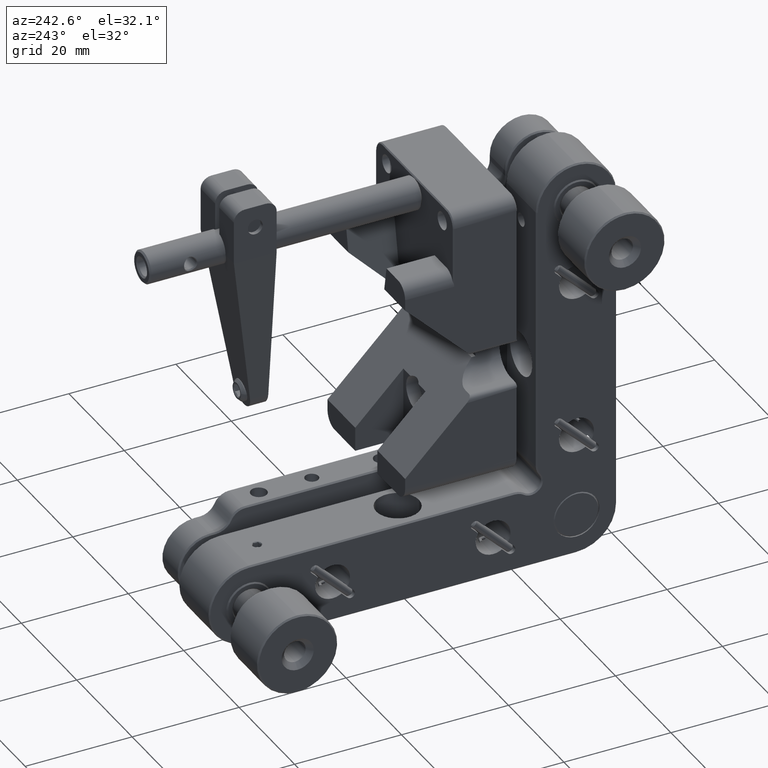
[diagram: clean part render]
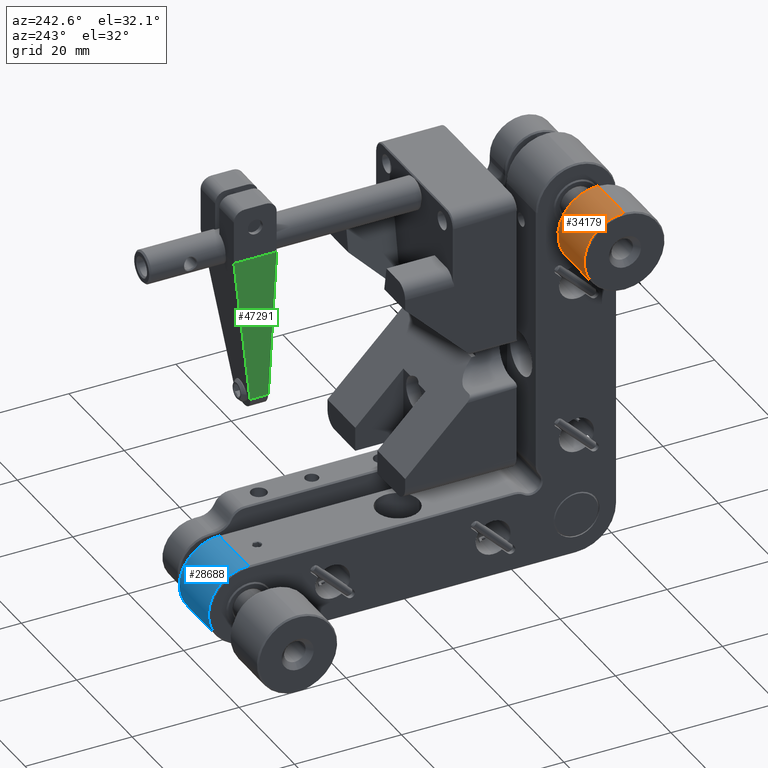
[diagram: same view with three faces highlighted in distinct colors, each labeled with its STEP entity id]
A machine part, auxiliary view with three faces highlighted in distinct colors.
Their STEP definitions:

[orange] entity #34179 — the highlighted cylindrical surface (partial cylindrical patch) has radius 7.5 mm, axis along (-1, -0, 0).
#85 = DIRECTION ( 'NONE',  ( -1.000000000000000000, -2.312964634635651252E-16, 2.312964634635651252E-16 ) ) ;
#894 = VERTEX_POINT ( 'NONE', #46513 ) ;
#1468 = CARTESIAN_POINT ( 'NONE',  ( -13.23561727047688841, -23.52740830937287342, 33.09568563278246245 ) ) ;
#2273 = VERTEX_POINT ( 'NONE', #1468 ) ;
#2332 = CIRCLE ( 'NONE', #10777, 7.500000000000298428 ) ;
#3906 = VERTEX_POINT ( 'NONE', #21430 ) ;
#4257 = LINE ( 'NONE', #44342, #41641 ) ;
#4341 = DIRECTION ( 'NONE',  ( 1.000000000000000000, 4.625929269271302504E-16, -4.625929269271302504E-16 ) ) ;
#6449 = EDGE_CURVE ( 'NONE', #9320, #9479, #25511, .T. ) ;
#8613 = ORIENTED_EDGE ( 'NONE', *, *, #35156, .T. ) ;
#9320 = VERTEX_POINT ( 'NONE', #43011 ) ;
#9479 = VERTEX_POINT ( 'NONE', #47520 ) ;
#9863 = CARTESIAN_POINT ( 'NONE',  ( -13.23561727047690262, -30.59999999999999787, 30.59999999999999787 ) ) ;
#9958 = ORIENTED_EDGE ( 'NONE', *, *, #42798, .T. ) ;
#10705 = DIRECTION ( 'NONE',  ( -1.000000000000000000, -2.312964634635651252E-16, 2.312964634635651252E-16 ) ) ;
#10777 = AXIS2_PLACEMENT_3D ( 'NONE', #44119, #29708, #22500 ) ;
#10944 = CARTESIAN_POINT ( 'NONE',  ( -13.23561727047690439, -30.60000000000000142, 38.10000000000029985 ) ) ;
#15141 = ORIENTED_EDGE ( 'NONE', *, *, #33472, .F. ) ;
#15839 = DIRECTION ( 'NONE',  ( 4.625929269271301518E-16, -1.000000000000000000, 0.000000000000000000 ) ) ;
#15970 = ORIENTED_EDGE ( 'NONE', *, *, #37871, .T. ) ;
#18703 = AXIS2_PLACEMENT_3D ( 'NONE', #19449, #4341, #15839 ) ;
#18783 = CARTESIAN_POINT ( 'NONE',  ( -12.28441727047690613, -30.60000000000000142, 23.09999999999970299 ) ) ;
#19449 = CARTESIAN_POINT ( 'NONE',  ( -22.73561727047700742, -30.60000000000000142, 30.60000000000000142 ) ) ;
#20914 = DIRECTION ( 'NONE',  ( 2.312964634635647801E-16, -1.000000000000000000, 9.251858538542591202E-16 ) ) ;
#21320 = EDGE_CURVE ( 'NONE', #3906, #894, #27475, .T. ) ;
#21430 = CARTESIAN_POINT ( 'NONE',  ( -22.73561727047697900, -23.52740830937291960, 33.09568563278241982 ) ) ;
#21739 = ORIENTED_EDGE ( 'NONE', *, *, #21320, .T. ) ;
#22450 = CYLINDRICAL_SURFACE ( 'NONE', #31708, 7.500000000000298428 ) ;
#22500 = DIRECTION ( 'NONE',  ( 2.312964634635650759E-16, 1.000000000000000000, 4.625929269271301518E-16 ) ) ;
#22613 = AXIS2_PLACEMENT_3D ( 'NONE', #9863, #29066, #20914 ) ;
#25511 = LINE ( 'NONE', #18783, #26777 ) ;
#25813 = DIRECTION ( 'NONE',  ( 2.312964634635650759E-16, 0.000000000000000000, 1.000000000000000000 ) ) ;
#26777 = VECTOR ( 'NONE', #85, 1000.000000000000000 ) ;
#27090 = ORIENTED_EDGE ( 'NONE', *, *, #6449, .T. ) ;
#27187 = CARTESIAN_POINT ( 'NONE',  ( -22.73561727047700742, -30.59999999999999787, 30.59999999999999787 ) ) ;
#27475 = CIRCLE ( 'NONE', #41273, 7.500000000000294875 ) ;
#28138 = DIRECTION ( 'NONE',  ( 4.625929269271303490E-16, 1.000000000000000000, 4.625929269271303490E-16 ) ) ;
#29066 = DIRECTION ( 'NONE',  ( -1.000000000000000000, -2.312964634635654703E-16, 2.312964634635654703E-16 ) ) ;
#29708 = DIRECTION ( 'NONE',  ( -1.000000000000000000, 2.312964634635646321E-16, -2.312964634635646321E-16 ) ) ;
#31708 = AXIS2_PLACEMENT_3D ( 'NONE', #36359, #10705, #25813 ) ;
#32804 = DIRECTION ( 'NONE',  ( -1.000000000000000000, -2.312964634635651252E-16, 2.312964634635651252E-16 ) ) ;
#33003 = FACE_OUTER_BOUND ( 'NONE', #36631, .T. ) ;
#33472 = EDGE_CURVE ( 'NONE', #44004, #894, #4257, .T. ) ;
#34179 = ADVANCED_FACE ( 'NONE', ( #33003 ), #22450, .T. ) ;
#35156 = EDGE_CURVE ( 'NONE', #9479, #3906, #47089, .T. ) ;
#35555 = DIRECTION ( 'NONE',  ( 1.000000000000000000, -4.625929269271295601E-16, 4.625929269271295601E-16 ) ) ;
#36359 = CARTESIAN_POINT ( 'NONE',  ( -12.28441727047690435, -30.60000000000000142, 30.60000000000000142 ) ) ;
#36403 = CIRCLE ( 'NONE', #22613, 7.500000000000308198 ) ;
#36631 = EDGE_LOOP ( 'NONE', ( #15970, #27090, #8613, #21739, #15141, #9958 ) ) ;
#37871 = EDGE_CURVE ( 'NONE', #2273, #9320, #36403, .T. ) ;
#41273 = AXIS2_PLACEMENT_3D ( 'NONE', #27187, #35555, #28138 ) ;
#41641 = VECTOR ( 'NONE', #32804, 1000.000000000000000 ) ;
#42798 = EDGE_CURVE ( 'NONE', #44004, #2273, #2332, .T. ) ;
#43011 = CARTESIAN_POINT ( 'NONE',  ( -13.23561727047690439, -30.60000000000000142, 23.09999999999968878 ) ) ;
#44004 = VERTEX_POINT ( 'NONE', #10944 ) ;
#44119 = CARTESIAN_POINT ( 'NONE',  ( -13.23561727047690262, -30.60000000000000142, 30.60000000000000142 ) ) ;
#44342 = CARTESIAN_POINT ( 'NONE',  ( -12.28441727047690257, -30.60000000000000142, 38.10000000000029985 ) ) ;
#46513 = CARTESIAN_POINT ( 'NONE',  ( -22.73561727047701098, -30.60000000000000142, 38.10000000000029274 ) ) ;
#47089 = CIRCLE ( 'NONE', #18703, 7.500000000000298428 ) ;
#47520 = CARTESIAN_POINT ( 'NONE',  ( -22.73561727047701098, -30.60000000000000142, 23.09999999999970299 ) ) ;

[blue] entity #28688 — the highlighted cylindrical surface (partial cylindrical patch) has radius 7.5 mm, axis along (1, 0, 0).
#510 = EDGE_CURVE ( 'NONE', #8833, #30640, #1691, .T. ) ;
#705 = DIRECTION ( 'NONE',  ( 1.000000000000000000, 1.156482317317871232E-16, 1.156482317317871232E-16 ) ) ;
#746 = VECTOR ( 'NONE', #6963, 1000.000000000000000 ) ;
#1691 = CIRCLE ( 'NONE', #28531, 7.500000000000013323 ) ;
#2465 = DIRECTION ( 'NONE',  ( 1.000000000000000000, -0.000000000000000000, -0.000000000000000000 ) ) ;
#4674 = EDGE_CURVE ( 'NONE', #41314, #30640, #14155, .T. ) ;
#4881 = DIRECTION ( 'NONE',  ( -1.000000000000000000, 0.000000000000000000, 0.000000000000000000 ) ) ;
#4905 = CARTESIAN_POINT ( 'NONE',  ( -5.249999999999999112, 30.60000000000000142, -30.60000000000000142 ) ) ;
#5015 = CYLINDRICAL_SURFACE ( 'NONE', #27129, 7.500000000000000000 ) ;
#5258 = EDGE_CURVE ( 'NONE', #7940, #41314, #11435, .T. ) ;
#5299 = DIRECTION ( 'NONE',  ( 1.156482317317870246E-16, 0.000000000000000000, 1.000000000000000000 ) ) ;
#6237 = EDGE_CURVE ( 'NONE', #47411, #7940, #25243, .T. ) ;
#6963 = DIRECTION ( 'NONE',  ( 1.000000000000000000, 0.000000000000000000, 0.000000000000000000 ) ) ;
#7940 = VERTEX_POINT ( 'NONE', #11425 ) ;
#8833 = VERTEX_POINT ( 'NONE', #44963 ) ;
#8899 = CARTESIAN_POINT ( 'NONE',  ( 5.249999999999999112, 30.60000000000000142, -30.60000000000000853 ) ) ;
#9377 = ORIENTED_EDGE ( 'NONE', *, *, #27691, .F. ) ;
#10379 = ORIENTED_EDGE ( 'NONE', *, *, #24501, .T. ) ;
#10692 = AXIS2_PLACEMENT_3D ( 'NONE', #4905, #26978, #12335 ) ;
#10784 = ORIENTED_EDGE ( 'NONE', *, *, #6237, .T. ) ;
#11425 = CARTESIAN_POINT ( 'NONE',  ( -5.250000000000000000, 38.10000000000000142, -30.59999999999999076 ) ) ;
#11435 = CIRCLE ( 'NONE', #13719, 7.500000000000000000 ) ;
#11973 = DIRECTION ( 'NONE',  ( 1.156482317317871478E-16, 0.000000000000000000, -1.000000000000000000 ) ) ;
#12335 = DIRECTION ( 'NONE',  ( 0.000000000000000000, -1.000000000000000000, 0.000000000000000000 ) ) ;
#13719 = AXIS2_PLACEMENT_3D ( 'NONE', #39764, #17936, #24902 ) ;
#14035 = ORIENTED_EDGE ( 'NONE', *, *, #510, .F. ) ;
#14155 = LINE ( 'NONE', #25670, #746 ) ;
#16086 = DIRECTION ( 'NONE',  ( 1.000000000000000000, -1.156482317317871232E-16, -1.156482317317872465E-16 ) ) ;
#16856 = DIRECTION ( 'NONE',  ( 0.000000000000000000, 0.000000000000000000, -1.000000000000000000 ) ) ;
#17936 = DIRECTION ( 'NONE',  ( 1.000000000000000000, -0.000000000000000000, 0.000000000000000000 ) ) ;
#18129 = VECTOR ( 'NONE', #4881, 1000.000000000000000 ) ;
#18552 = ORIENTED_EDGE ( 'NONE', *, *, #5258, .T. ) ;
#22518 = CIRCLE ( 'NONE', #28654, 7.500000000000007105 ) ;
#24501 = EDGE_CURVE ( 'NONE', #27243, #47411, #33674, .T. ) ;
#24902 = DIRECTION ( 'NONE',  ( 0.000000000000000000, -1.000000000000000000, 0.000000000000000000 ) ) ;
#25026 = CARTESIAN_POINT ( 'NONE',  ( 5.249999999999991118, 30.60000000000000142, -30.60000000000000142 ) ) ;
#25243 = CIRCLE ( 'NONE', #10692, 7.500000000000000000 ) ;
#25670 = CARTESIAN_POINT ( 'NONE',  ( 0.000000000000000000, 30.60000000000000142, -23.10000000000000142 ) ) ;
#26978 = DIRECTION ( 'NONE',  ( 1.000000000000000000, -0.000000000000000000, -0.000000000000000000 ) ) ;
#27129 = AXIS2_PLACEMENT_3D ( 'NONE', #44865, #705, #11973 ) ;
#27243 = VERTEX_POINT ( 'NONE', #40653 ) ;
#27691 = EDGE_CURVE ( 'NONE', #27243, #8833, #22518, .T. ) ;
#28531 = AXIS2_PLACEMENT_3D ( 'NONE', #25026, #2465, #16856 ) ;
#28654 = AXIS2_PLACEMENT_3D ( 'NONE', #8899, #16086, #5299 ) ;
#28688 = ADVANCED_FACE ( 'NONE', ( #29984 ), #5015, .T. ) ;
#29984 = FACE_OUTER_BOUND ( 'NONE', #41114, .T. ) ;
#30640 = VERTEX_POINT ( 'NONE', #33456 ) ;
#31783 = ORIENTED_EDGE ( 'NONE', *, *, #4674, .T. ) ;
#33456 = CARTESIAN_POINT ( 'NONE',  ( 5.249999999999990230, 30.60000000000003340, -23.10000000000000142 ) ) ;
#33674 = LINE ( 'NONE', #41348, #18129 ) ;
#39764 = CARTESIAN_POINT ( 'NONE',  ( -5.250000000000000888, 30.60000000000000142, -30.60000000000000142 ) ) ;
#40653 = CARTESIAN_POINT ( 'NONE',  ( 5.250000000000000000, 30.59999999999998721, -38.10000000000000853 ) ) ;
#41114 = EDGE_LOOP ( 'NONE', ( #14035, #9377, #10379, #10784, #18552, #31783 ) ) ;
#41314 = VERTEX_POINT ( 'NONE', #41783 ) ;
#41348 = CARTESIAN_POINT ( 'NONE',  ( 0.000000000000000000, 30.60000000000000142, -38.10000000000000142 ) ) ;
#41783 = CARTESIAN_POINT ( 'NONE',  ( -5.250000000000000000, 30.59999999999998721, -23.10000000000000142 ) ) ;
#42095 = CARTESIAN_POINT ( 'NONE',  ( -5.249999999999991118, 30.59999999999999787, -38.09999999999999432 ) ) ;
#44865 = CARTESIAN_POINT ( 'NONE',  ( -6.301200000000000578, 30.60000000000000142, -30.60000000000000142 ) ) ;
#44963 = CARTESIAN_POINT ( 'NONE',  ( 5.249999999999993783, 38.10000000000000853, -30.59999999999999432 ) ) ;
#47411 = VERTEX_POINT ( 'NONE', #42095 ) ;

[green] entity #47291 — the highlighted planar face has unit normal (-0.9949, -0, -0.1013).
#1345 = EDGE_LOOP ( 'NONE', ( #14166, #16538, #32160, #12897 ) ) ;
#1477 = DIRECTION ( 'NONE',  ( -3.255606606188481306E-17, 1.000000000000000000, -3.316137763458167419E-18 ) ) ;
#1558 = CARTESIAN_POINT ( 'NONE',  ( 5.194390222660531187, 18.96926049776489975, 32.26170914000339707 ) ) ;
#1583 = AXIS2_PLACEMENT_3D ( 'NONE', #1558, #12817, #15948 ) ;
#1590 = VECTOR ( 'NONE', #41433, 1000.000000000000000 ) ;
#1831 = LINE ( 'NONE', #24560, #1590 ) ;
#2924 = EDGE_CURVE ( 'NONE', #5775, #39398, #25445, .T. ) ;
#3844 = DIRECTION ( 'NONE',  ( 0.1001542559867135557, -0.1522075683738869645, -0.9832608916953100575 ) ) ;
#5775 = VERTEX_POINT ( 'NONE', #37049 ) ;
#9226 = FACE_OUTER_BOUND ( 'NONE', #1345, .T. ) ;
#10359 = DIRECTION ( 'NONE',  ( 0.1013349551580598057, 0.000000000000000000, -0.9948523643551911988 ) ) ;
#12817 = DIRECTION ( 'NONE',  ( -0.9948523643551913098, -3.272451996732788782E-17, -0.1013349551580586955 ) ) ;
#12897 = ORIENTED_EDGE ( 'NONE', *, *, #43155, .F. ) ;
#14166 = ORIENTED_EDGE ( 'NONE', *, *, #46409, .F. ) ;
#15414 = VERTEX_POINT ( 'NONE', #25664 ) ;
#15948 = DIRECTION ( 'NONE',  ( -0.1013349551580586955, 0.000000000000000000, 0.9948523643551913098 ) ) ;
#16538 = ORIENTED_EDGE ( 'NONE', *, *, #31532, .T. ) ;
#16956 = VECTOR ( 'NONE', #3844, 1000.000000000000114 ) ;
#17787 = LINE ( 'NONE', #32891, #26828 ) ;
#23871 = PLANE ( 'NONE',  #1583 ) ;
#24560 = CARTESIAN_POINT ( 'NONE',  ( 8.511510718799875974, 21.47912885183035314, -0.3040048654743535139 ) ) ;
#25445 = LINE ( 'NONE', #43927, #16956 ) ;
#25664 = CARTESIAN_POINT ( 'NONE',  ( 8.511510718799874198, 19.77046049776490122, -0.3040048654743534029 ) ) ;
#26828 = VECTOR ( 'NONE', #10359, 1000.000000000000114 ) ;
#30759 = VERTEX_POINT ( 'NONE', #41366 ) ;
#31532 = EDGE_CURVE ( 'NONE', #30759, #5775, #33868, .T. ) ;
#32160 = ORIENTED_EDGE ( 'NONE', *, *, #2924, .T. ) ;
#32891 = CARTESIAN_POINT ( 'NONE',  ( 5.496067811865420261, 19.77046049776490122, 29.30000000000000071 ) ) ;
#33868 = LINE ( 'NONE', #44936, #34705 ) ;
#34705 = VECTOR ( 'NONE', #1477, 1000.000000000000000 ) ;
#37049 = CARTESIAN_POINT ( 'NONE',  ( 5.496067811865421149, 27.77046049776490122, 29.30000000000000071 ) ) ;
#39398 = VERTEX_POINT ( 'NONE', #46963 ) ;
#41366 = CARTESIAN_POINT ( 'NONE',  ( 5.496067811865420261, 19.77046049776490122, 29.29999999999996518 ) ) ;
#41433 = DIRECTION ( 'NONE',  ( -0.000000000000000000, 1.000000000000000000, 4.624078595267402003E-16 ) ) ;
#43155 = EDGE_CURVE ( 'NONE', #15414, #39398, #1831, .T. ) ;
#43927 = CARTESIAN_POINT ( 'NONE',  ( 5.496067811865419372, 27.77046049776490122, 29.30000000000000071 ) ) ;
#44936 = CARTESIAN_POINT ( 'NONE',  ( 5.496067811865419372, 18.96926049776489975, 29.30000000000000071 ) ) ;
#46409 = EDGE_CURVE ( 'NONE', #30759, #15414, #17787, .T. ) ;
#46963 = CARTESIAN_POINT ( 'NONE',  ( 8.511510718799874198, 23.18779720589581572, -0.3040048654743496281 ) ) ;
#47291 = ADVANCED_FACE ( 'NONE', ( #9226 ), #23871, .T. ) ;